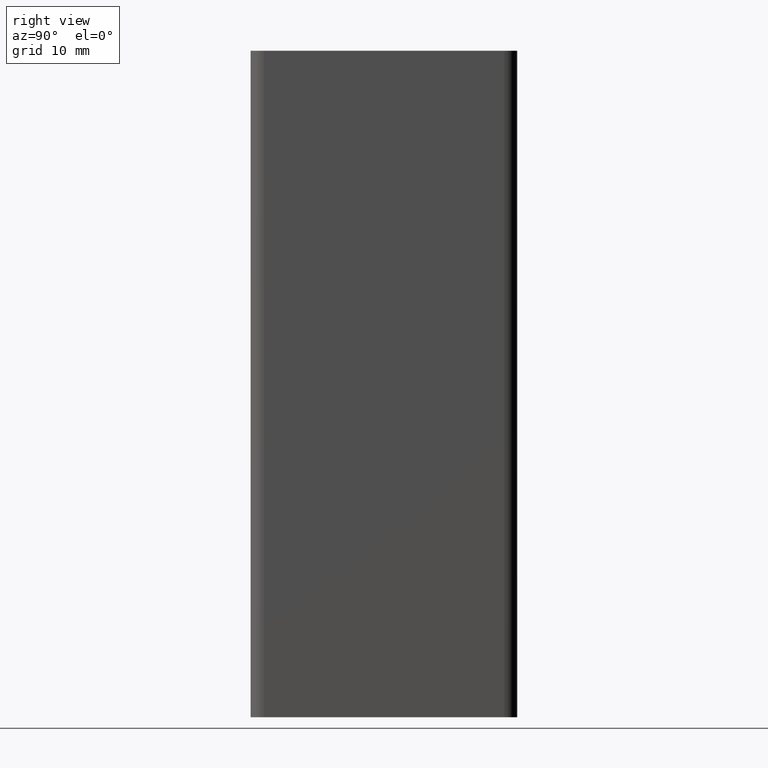
[diagram: clean part render]
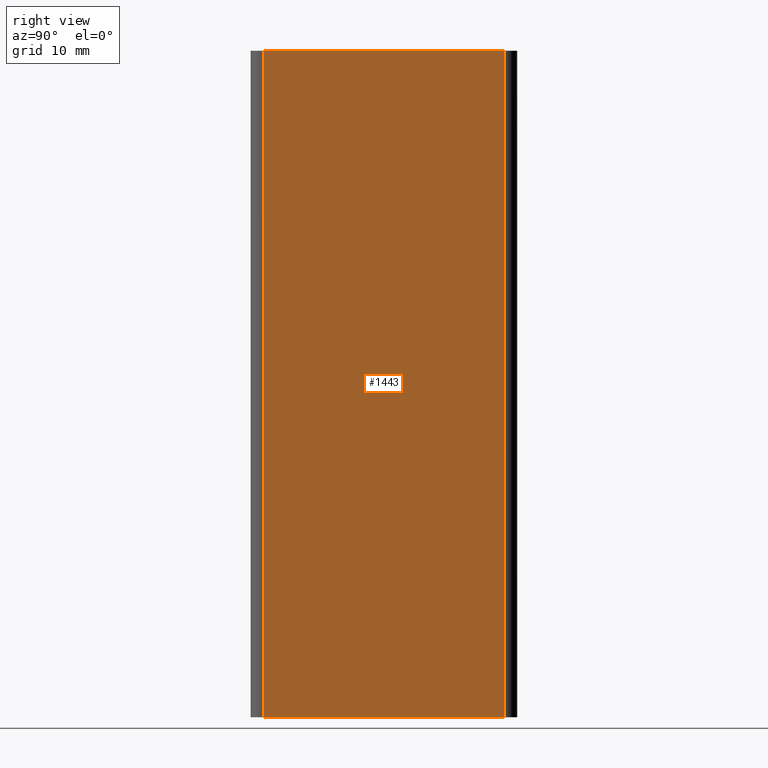
[diagram: same view with one face highlighted and labeled with its STEP entity id]
A machine part, right view. The second image highlights one B-rep face of the part: STEP entity #1443.
In plain terms, the highlighted planar face has unit normal (1, -0, 0).
Its self-contained STEP definition (entity closure, byte-faithful):
#61=PLANE('',#1563);
#131=FACE_OUTER_BOUND('',#204,.T.);
#204=EDGE_LOOP('',(#1263,#1264,#1265,#1266));
#361=LINE('',#2365,#523);
#366=LINE('',#2379,#528);
#367=LINE('',#2383,#529);
#368=LINE('',#2384,#530);
#523=VECTOR('',#1935,36.0000000000002);
#528=VECTOR('',#1950,100.);
#529=VECTOR('',#1955,100.);
#530=VECTOR('',#1956,36.0000000000002);
#714=VERTEX_POINT('',#2362);
#715=VERTEX_POINT('',#2364);
#719=VERTEX_POINT('',#2378);
#720=VERTEX_POINT('',#2382);
#916=EDGE_CURVE('',#715,#714,#361,.T.);
#923=EDGE_CURVE('',#719,#715,#366,.T.);
#925=EDGE_CURVE('',#720,#714,#367,.T.);
#926=EDGE_CURVE('',#719,#720,#368,.T.);
#1263=ORIENTED_EDGE('',*,*,#916,.T.);
#1264=ORIENTED_EDGE('',*,*,#925,.F.);
#1265=ORIENTED_EDGE('',*,*,#926,.F.);
#1266=ORIENTED_EDGE('',*,*,#923,.T.);
#1443=ADVANCED_FACE('',(#131),#61,.T.);
#1563=AXIS2_PLACEMENT_3D('',#2381,#1953,#1954);
#1935=DIRECTION('',(-8.88178419700121E-15,-1.,0.));
#1950=DIRECTION('',(0.,0.,1.));
#1953=DIRECTION('center_axis',(1.,-8.88178419700121E-15,0.));
#1954=DIRECTION('ref_axis',(8.88178419700125E-15,1.,0.));
#1955=DIRECTION('',(0.,0.,1.));
#1956=DIRECTION('',(-8.88178419700121E-15,-1.,0.));
#2362=CARTESIAN_POINT('',(6.00000000000016,-18.0000000000001,100.));
#2364=CARTESIAN_POINT('',(6.00000000000048,18.,100.));
#2365=CARTESIAN_POINT('',(6.00000000000024,-9.00000000000041,100.));
#2378=CARTESIAN_POINT('',(6.00000000000048,18.,0.));
#2379=CARTESIAN_POINT('',(6.00000000000048,18.,0.));
#2381=CARTESIAN_POINT('Origin',(6.00000000000016,-18.0000000000001,0.));
#2382=CARTESIAN_POINT('',(6.00000000000016,-18.0000000000001,0.));
#2383=CARTESIAN_POINT('',(6.00000000000016,-18.0000000000001,0.));
#2384=CARTESIAN_POINT('',(6.00000000000024,-9.00000000000041,0.));